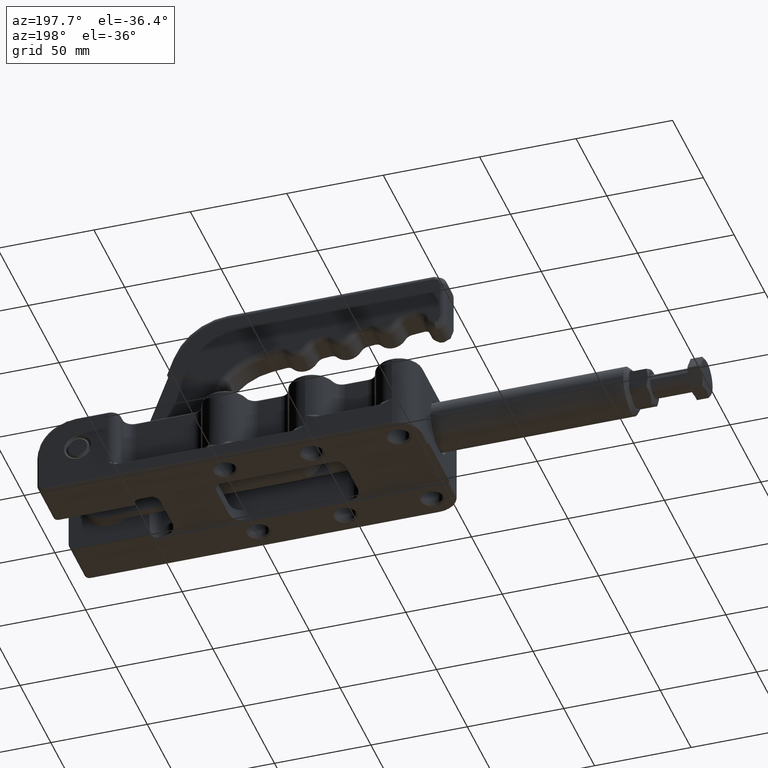
[diagram: clean part render]
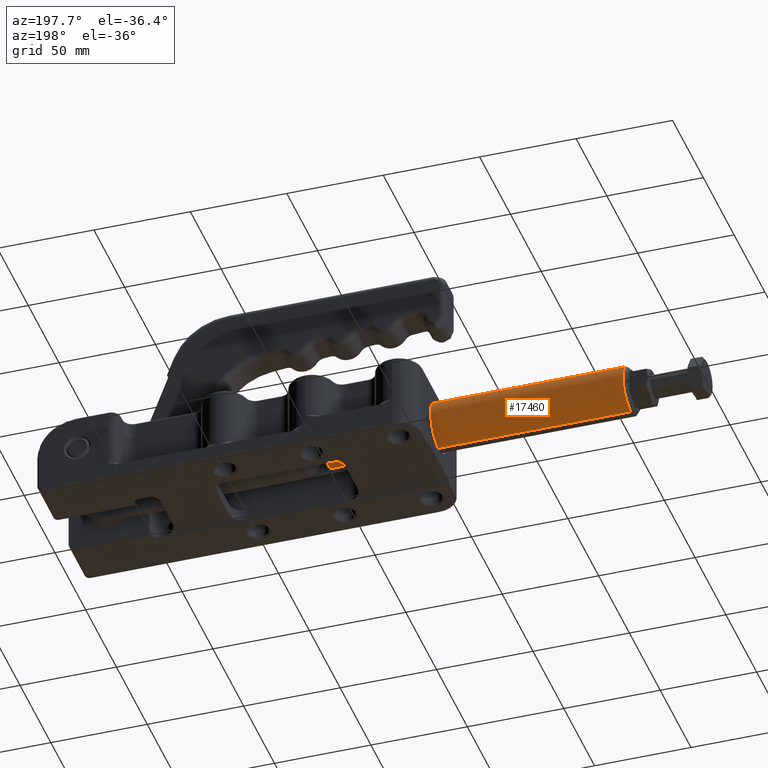
[diagram: same view with one face highlighted and labeled with its STEP entity id]
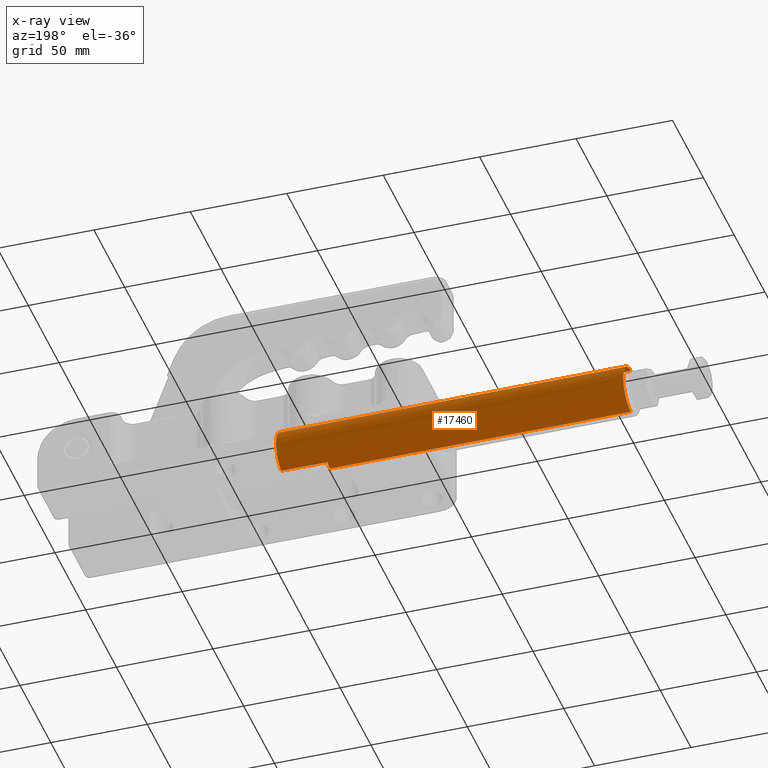
[diagram: x-ray of the same camera — body ghosted, the highlighted face saturated]
A machine part, auxiliary view. The second image highlights one B-rep face of the part: STEP entity #17460.
The next image is the same camera in x-ray: the body ghosted, the highlighted face saturated — about 0% of this face is hidden behind the body in this view.
In plain terms, the highlighted cylindrical surface (edge-blend (fillet) strip) has radius 12.5 mm, axis along (-1, 0, -0).
Its self-contained STEP definition (entity closure, byte-faithful):
#16998=CARTESIAN_POINT('',(80.499999999999730,-12.499999999999893,21.999999999999890));
#16999=VERTEX_POINT('',#16998);
#17008=CARTESIAN_POINT('',(80.499999999999716,-4.499999999999888,10.338096210309287));
#17009=VERTEX_POINT('',#17008);
#17010=CARTESIAN_POINT('',(80.499999999999716,1.065158E-013,21.999999999999890));
#17011=DIRECTION('',(1.0,0.0,0.0));
#17012=DIRECTION('',(0.0,-1.0,0.0));
#17013=AXIS2_PLACEMENT_3D('',#17010,#17011,#17012);
#17014=CIRCLE('',#17013,12.500000000000000);
#17015=EDGE_CURVE('',#16999,#17009,#17014,.T.);
#17098=CARTESIAN_POINT('',(-99.500000000000284,-12.500000000000389,21.999999999999872));
#17099=VERTEX_POINT('',#17098);
#17123=CARTESIAN_POINT('',(-99.500000000000313,-3.853782E-013,9.499999999999872));
#17124=VERTEX_POINT('',#17123);
#17132=CARTESIAN_POINT('',(-99.500000000000313,-3.898347E-013,21.999999999999872));
#17133=DIRECTION('',(-1.0,0.0,0.0));
#17134=DIRECTION('',(0.0,-1.0,0.0));
#17135=AXIS2_PLACEMENT_3D('',#17132,#17133,#17134);
#17136=CIRCLE('',#17135,12.500000000000000);
#17137=EDGE_CURVE('',#17124,#17099,#17136,.T.);
#17268=CARTESIAN_POINT('',(56.499999999999716,3.587925E-014,34.499999999999886));
#17269=VERTEX_POINT('',#17268);
#17270=CARTESIAN_POINT('',(-99.500000000000313,-3.942912E-013,34.499999999999872));
#17271=VERTEX_POINT('',#17270);
#17272=CARTESIAN_POINT('',(56.499999999999716,3.587925E-014,34.499999999999886));
#17273=DIRECTION('',(-1.0,0.0,0.0));
#17274=VECTOR('',#17273,156.000000000000030);
#17275=LINE('',#17272,#17274);
#17276=EDGE_CURVE('',#17269,#17271,#17275,.T.);
#17311=CARTESIAN_POINT('',(56.499999999999716,4.479215E-014,9.499999999999886));
#17312=VERTEX_POINT('',#17311);
#17320=CARTESIAN_POINT('',(-99.500000000000313,-3.853782E-013,9.499999999999872));
#17321=DIRECTION('',(1.0,0.0,0.0));
#17322=VECTOR('',#17321,156.000000000000030);
#17323=LINE('',#17320,#17322);
#17324=EDGE_CURVE('',#17124,#17312,#17323,.T.);
#17403=CARTESIAN_POINT('',(80.499999999999716,1.065158E-013,21.999999999999890));
#17404=DIRECTION('',(-1.0,-2.757503E-015,-1.110223E-016));
#17405=DIRECTION('',(0.0,0.0,1.0));
#17406=AXIS2_PLACEMENT_3D('',#17403,#17404,#17405);
#17407=CYLINDRICAL_SURFACE('',#17406,12.500000000000000);
#17408=ORIENTED_EDGE('',*,*,#17276,.T.);
#17409=CARTESIAN_POINT('',(-99.500000000000313,-3.898347E-013,21.999999999999872));
#17410=DIRECTION('',(-1.0,0.0,0.0));
#17411=DIRECTION('',(0.0,-1.0,0.0));
#17412=AXIS2_PLACEMENT_3D('',#17409,#17410,#17411);
#17413=CIRCLE('',#17412,12.500000000000000);
#17414=EDGE_CURVE('',#17099,#17271,#17413,.T.);
#17415=ORIENTED_EDGE('',*,*,#17414,.F.);
#17416=ORIENTED_EDGE('',*,*,#17137,.F.);
#17417=ORIENTED_EDGE('',*,*,#17324,.T.);
#17418=CARTESIAN_POINT('',(56.499999999999730,-4.499999999999955,10.338096210309288));
#17419=VERTEX_POINT('',#17418);
#17420=CARTESIAN_POINT('',(56.499999999999716,4.033570E-014,21.999999999999886));
#17421=DIRECTION('',(-1.0,0.0,0.0));
#17422=DIRECTION('',(0.0,1.0,0.0));
#17423=AXIS2_PLACEMENT_3D('',#17420,#17421,#17422);
#17424=CIRCLE('',#17423,12.500000000000000);
#17425=EDGE_CURVE('',#17312,#17419,#17424,.T.);
#17426=ORIENTED_EDGE('',*,*,#17425,.T.);
#17427=CARTESIAN_POINT('',(56.499999999999730,-4.499999999999955,10.338096210309288));
#17428=DIRECTION('',(1.0,0.0,0.0));
#17429=VECTOR('',#17428,23.999999999999986);
#17430=LINE('',#17427,#17429);
#17431=EDGE_CURVE('',#17419,#17009,#17430,.T.);
#17432=ORIENTED_EDGE('',*,*,#17431,.T.);
#17433=ORIENTED_EDGE('',*,*,#17015,.F.);
#17434=CARTESIAN_POINT('',(80.499999999999716,-4.499999999999895,33.661903789690491));
#17435=VERTEX_POINT('',#17434);
#17436=CARTESIAN_POINT('',(80.499999999999716,1.065158E-013,21.999999999999890));
#17437=DIRECTION('',(1.0,0.0,0.0));
#17438=DIRECTION('',(0.0,-1.0,0.0));
#17439=AXIS2_PLACEMENT_3D('',#17436,#17437,#17438);
#17440=CIRCLE('',#17439,12.500000000000000);
#17441=EDGE_CURVE('',#17435,#16999,#17440,.T.);
#17442=ORIENTED_EDGE('',*,*,#17441,.F.);
#17443=CARTESIAN_POINT('',(56.499999999999730,-4.499999999999961,33.661903789690484));
#17444=VERTEX_POINT('',#17443);
#17445=CARTESIAN_POINT('',(80.499999999999716,-4.499999999999895,33.661903789690491));
#17446=DIRECTION('',(-1.0,0.0,0.0));
#17447=VECTOR('',#17446,23.999999999999986);
#17448=LINE('',#17445,#17447);
#17449=EDGE_CURVE('',#17435,#17444,#17448,.T.);
#17450=ORIENTED_EDGE('',*,*,#17449,.T.);
#17451=CARTESIAN_POINT('',(56.499999999999716,4.033570E-014,21.999999999999886));
#17452=DIRECTION('',(-1.0,0.0,0.0));
#17453=DIRECTION('',(0.0,1.0,0.0));
#17454=AXIS2_PLACEMENT_3D('',#17451,#17452,#17453);
#17455=CIRCLE('',#17454,12.500000000000000);
#17456=EDGE_CURVE('',#17444,#17269,#17455,.T.);
#17457=ORIENTED_EDGE('',*,*,#17456,.T.);
#17458=EDGE_LOOP('',(#17408,#17415,#17416,#17417,#17426,#17432,#17433,#17442,#17450,#17457));
#17459=FACE_OUTER_BOUND('',#17458,.T.);
#17460=ADVANCED_FACE('',(#17459),#17407,.T.);